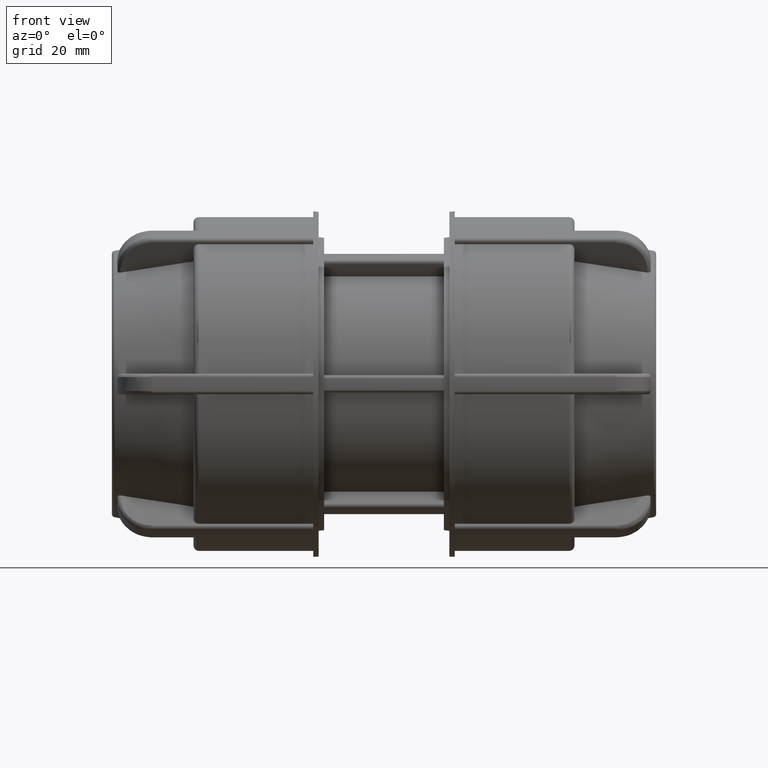
[diagram: clean part render]
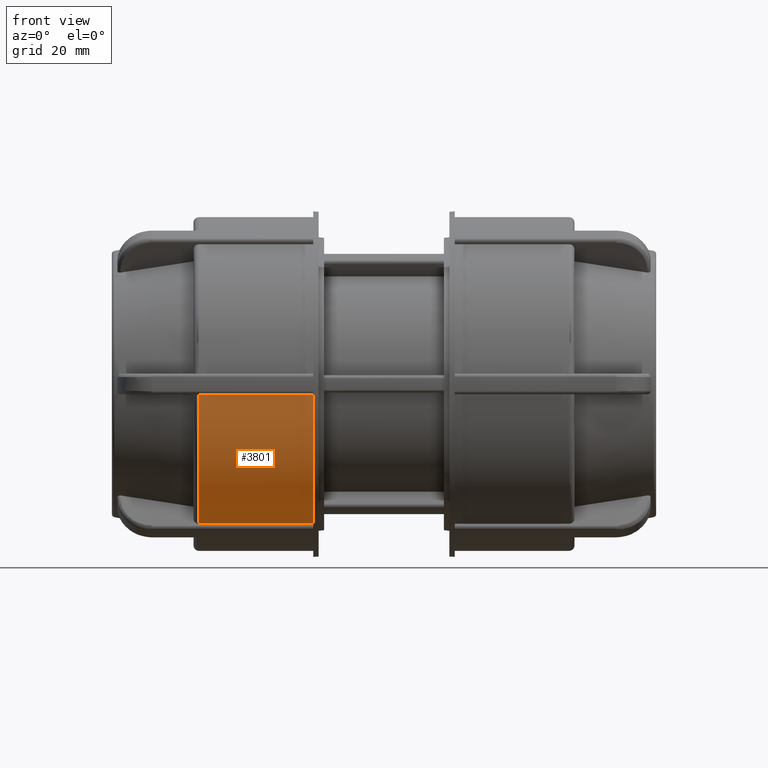
[diagram: same view with one face highlighted and labeled with its STEP entity id]
A machine part, front view. The second image highlights one B-rep face of the part: STEP entity #3801.
In plain terms, the highlighted cylindrical surface (partial cylindrical patch) has radius 51.41 mm, axis along (1, 0, 0).
Its self-contained STEP definition (entity closure, byte-faithful):
#415=FACE_OUTER_BOUND('',#657,.T.);
#657=EDGE_LOOP('',(#2976,#2977,#2978,#2979));
#876=LINE('',#5997,#1104);
#918=LINE('',#6651,#1146);
#1104=VECTOR('',#4718,35.07);
#1146=VECTOR('',#4876,35.07);
#1370=CIRCLE('',#4141,51.41);
#1376=CIRCLE('',#4153,51.41);
#1608=VERTEX_POINT('',#5994);
#1609=VERTEX_POINT('',#5996);
#1680=VERTEX_POINT('',#6639);
#1681=VERTEX_POINT('',#6650);
#2034=EDGE_CURVE('',#1609,#1608,#876,.T.);
#2142=EDGE_CURVE('',#1681,#1680,#918,.T.);
#2167=EDGE_CURVE('',#1609,#1680,#1370,.T.);
#2175=EDGE_CURVE('',#1681,#1608,#1376,.T.);
#2976=ORIENTED_EDGE('',*,*,#2034,.T.);
#2977=ORIENTED_EDGE('',*,*,#2175,.F.);
#2978=ORIENTED_EDGE('',*,*,#2142,.T.);
#2979=ORIENTED_EDGE('',*,*,#2167,.F.);
#3649=CYLINDRICAL_SURFACE('',#4152,51.41);
#3801=ADVANCED_FACE('',(#415),#3649,.T.);
#4141=AXIS2_PLACEMENT_3D('',#6716,#4935,#4936);
#4152=AXIS2_PLACEMENT_3D('',#6740,#4958,#4959);
#4153=AXIS2_PLACEMENT_3D('',#6741,#4960,#4961);
#4718=DIRECTION('',(1.,3.06161699786838E-16,0.));
#4876=DIRECTION('',(-1.,-3.06161699786838E-16,0.));
#4935=DIRECTION('center_axis',(-1.,-3.06161699786838E-16,0.));
#4936=DIRECTION('ref_axis',(3.07735423087113E-16,-1.,1.83697019872103E-16));
#4958=DIRECTION('center_axis',(1.,3.06161699786838E-16,0.));
#4959=DIRECTION('ref_axis',(-1.47474491896561E-16,1.,0.));
#4960=DIRECTION('center_axis',(1.,3.06161699786838E-16,0.));
#4961=DIRECTION('ref_axis',(0.,0.,-1.));
#5994=CARTESIAN_POINT('',(-21.71,-28.3846828498372,-42.8637128526468));
#5996=CARTESIAN_POINT('',(-56.78,-28.3846828498372,-42.8637128526468));
#5997=CARTESIAN_POINT('',(-40.08,-28.3846828498372,-42.8637128526468));
#6639=CARTESIAN_POINT('',(-56.78,-51.3134056558323,-3.14999999999999));
#6650=CARTESIAN_POINT('',(-21.71,-51.3134056558323,-3.14999999999999));
#6651=CARTESIAN_POINT('',(-40.08,-51.3134056558323,-3.14999999999999));
#6716=CARTESIAN_POINT('Origin',(-56.78,-1.73838613138967E-14,0.));
#6740=CARTESIAN_POINT('Origin',(-40.08,-1.22709609274565E-14,0.));
#6741=CARTESIAN_POINT('Origin',(-21.71,-6.64677050237226E-15,0.));